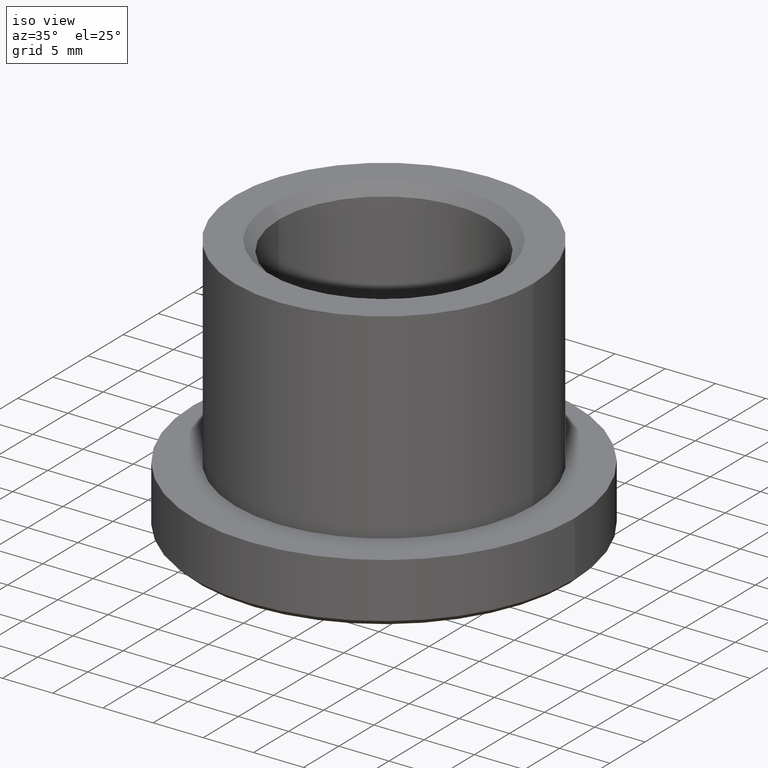
[diagram: clean part render]
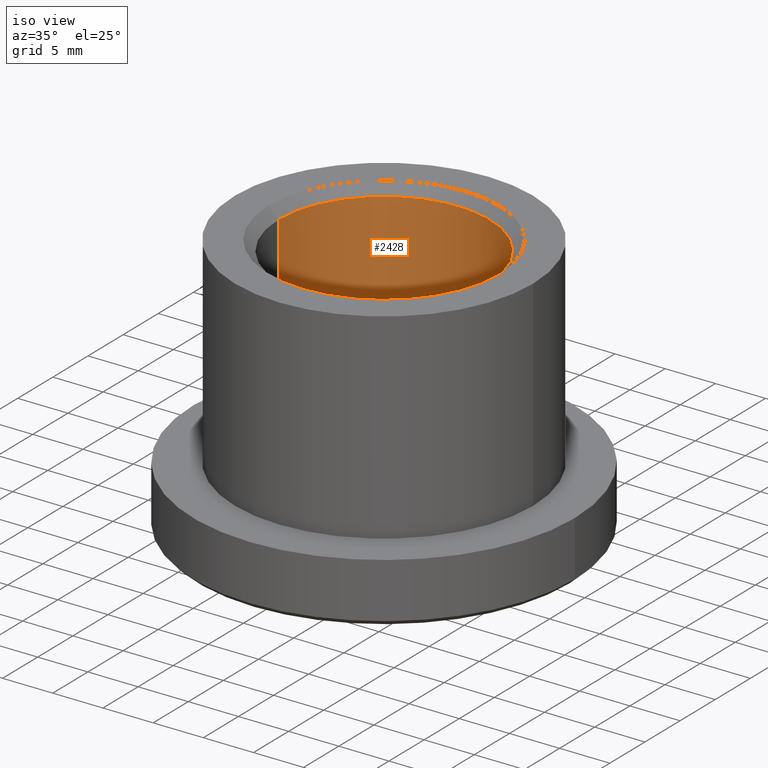
[diagram: same view with one face highlighted and labeled with its STEP entity id]
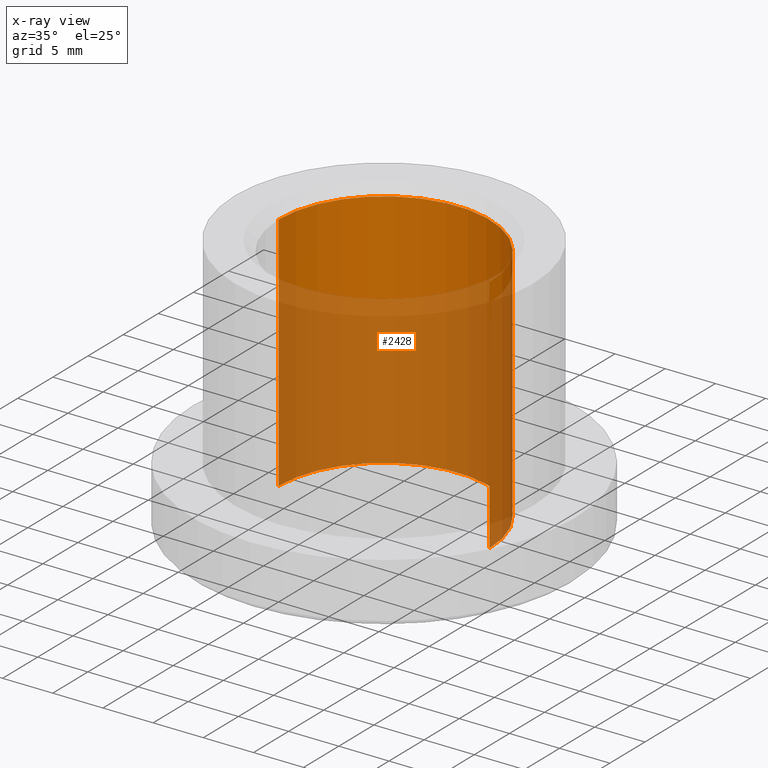
[diagram: x-ray of the same camera — body ghosted, the highlighted face saturated]
A machine part, iso view. The second image highlights one B-rep face of the part: STEP entity #2428.
The next image is the same camera in x-ray: the body ghosted, the highlighted face saturated — about 68% of this face is hidden behind the body in this view.
In plain terms, the highlighted cylindrical surface (partial cylindrical patch) has radius 10.5 mm, axis along (-0, -0, 1).
Its self-contained STEP definition (entity closure, byte-faithful):
#310 = VERTEX_POINT ( 'NONE', #4859 ) ;
#421 = DIRECTION ( 'NONE',  ( 0.000000000000000000, 0.000000000000000000, 1.000000000000000000 ) ) ;
#950 = VECTOR ( 'NONE', #9231, 1000.000000000000000 ) ;
#979 = ORIENTED_EDGE ( 'NONE', *, *, #6156, .T. ) ;
#996 = ORIENTED_EDGE ( 'NONE', *, *, #13574, .T. ) ;
#1456 = CARTESIAN_POINT ( 'NONE',  ( 10.49999999999999467, 0.000000000000000000, 11.99999999999999645 ) ) ;
#1790 = AXIS2_PLACEMENT_3D ( 'NONE', #12989, #421, #8793 ) ;
#2070 = AXIS2_PLACEMENT_3D ( 'NONE', #9141, #7990, #2884 ) ;
#2292 = CARTESIAN_POINT ( 'NONE',  ( 10.49999999999999467, 0.000000000000000000, 13.00000000000000000 ) ) ;
#2428 = ADVANCED_FACE ( 'NONE', ( #6706 ), #3427, .F. ) ;
#2884 = DIRECTION ( 'NONE',  ( 1.000000000000000000, 0.000000000000000000, 0.000000000000000000 ) ) ;
#3376 = EDGE_CURVE ( 'NONE', #9359, #310, #4042, .T. ) ;
#3427 = CYLINDRICAL_SURFACE ( 'NONE', #8821, 10.49999999999999467 ) ;
#4042 = CIRCLE ( 'NONE', #2070, 10.49999999999999467 ) ;
#4178 = VECTOR ( 'NONE', #4518, 1000.000000000000000 ) ;
#4394 = CARTESIAN_POINT ( 'NONE',  ( -10.49999999999999467, 1.285879139104720239E-15, 11.99999999999999645 ) ) ;
#4518 = DIRECTION ( 'NONE',  ( -0.000000000000000000, -0.000000000000000000, 1.000000000000000000 ) ) ;
#4585 = LINE ( 'NONE', #7058, #950 ) ;
#4859 = CARTESIAN_POINT ( 'NONE',  ( 10.49999999999999467, 0.000000000000000000, -12.00000000000000888 ) ) ;
#5040 = VERTEX_POINT ( 'NONE', #4394 ) ;
#6156 = EDGE_CURVE ( 'NONE', #310, #10801, #6979, .T. ) ;
#6183 = DIRECTION ( 'NONE',  ( -0.000000000000000000, -0.000000000000000000, 1.000000000000000000 ) ) ;
#6382 = CIRCLE ( 'NONE', #1790, 10.49999999999999467 ) ;
#6706 = FACE_OUTER_BOUND ( 'NONE', #9032, .T. ) ;
#6979 = LINE ( 'NONE', #2292, #4178 ) ;
#7058 = CARTESIAN_POINT ( 'NONE',  ( -10.49999999999999467, 1.285879139104720239E-15, 13.00000000000000000 ) ) ;
#7990 = DIRECTION ( 'NONE',  ( -0.000000000000000000, -0.000000000000000000, -1.000000000000000000 ) ) ;
#8051 = ORIENTED_EDGE ( 'NONE', *, *, #12475, .F. ) ;
#8793 = DIRECTION ( 'NONE',  ( -1.000000000000000000, 0.000000000000000000, 0.000000000000000000 ) ) ;
#8821 = AXIS2_PLACEMENT_3D ( 'NONE', #10248, #6183, #11625 ) ;
#9032 = EDGE_LOOP ( 'NONE', ( #8051, #10628, #979, #996 ) ) ;
#9141 = CARTESIAN_POINT ( 'NONE',  ( 0.000000000000000000, 0.000000000000000000, -12.00000000000000888 ) ) ;
#9231 = DIRECTION ( 'NONE',  ( -0.000000000000000000, -0.000000000000000000, 1.000000000000000000 ) ) ;
#9359 = VERTEX_POINT ( 'NONE', #13444 ) ;
#10248 = CARTESIAN_POINT ( 'NONE',  ( 0.000000000000000000, 0.000000000000000000, 13.00000000000000000 ) ) ;
#10628 = ORIENTED_EDGE ( 'NONE', *, *, #3376, .T. ) ;
#10801 = VERTEX_POINT ( 'NONE', #1456 ) ;
#11625 = DIRECTION ( 'NONE',  ( 1.000000000000000000, 0.000000000000000000, 0.000000000000000000 ) ) ;
#12475 = EDGE_CURVE ( 'NONE', #9359, #5040, #4585, .T. ) ;
#12989 = CARTESIAN_POINT ( 'NONE',  ( 0.000000000000000000, 0.000000000000000000, 11.99999999999999645 ) ) ;
#13444 = CARTESIAN_POINT ( 'NONE',  ( -10.49999999999999467, 1.285879139104720239E-15, -12.00000000000000888 ) ) ;
#13574 = EDGE_CURVE ( 'NONE', #10801, #5040, #6382, .T. ) ;